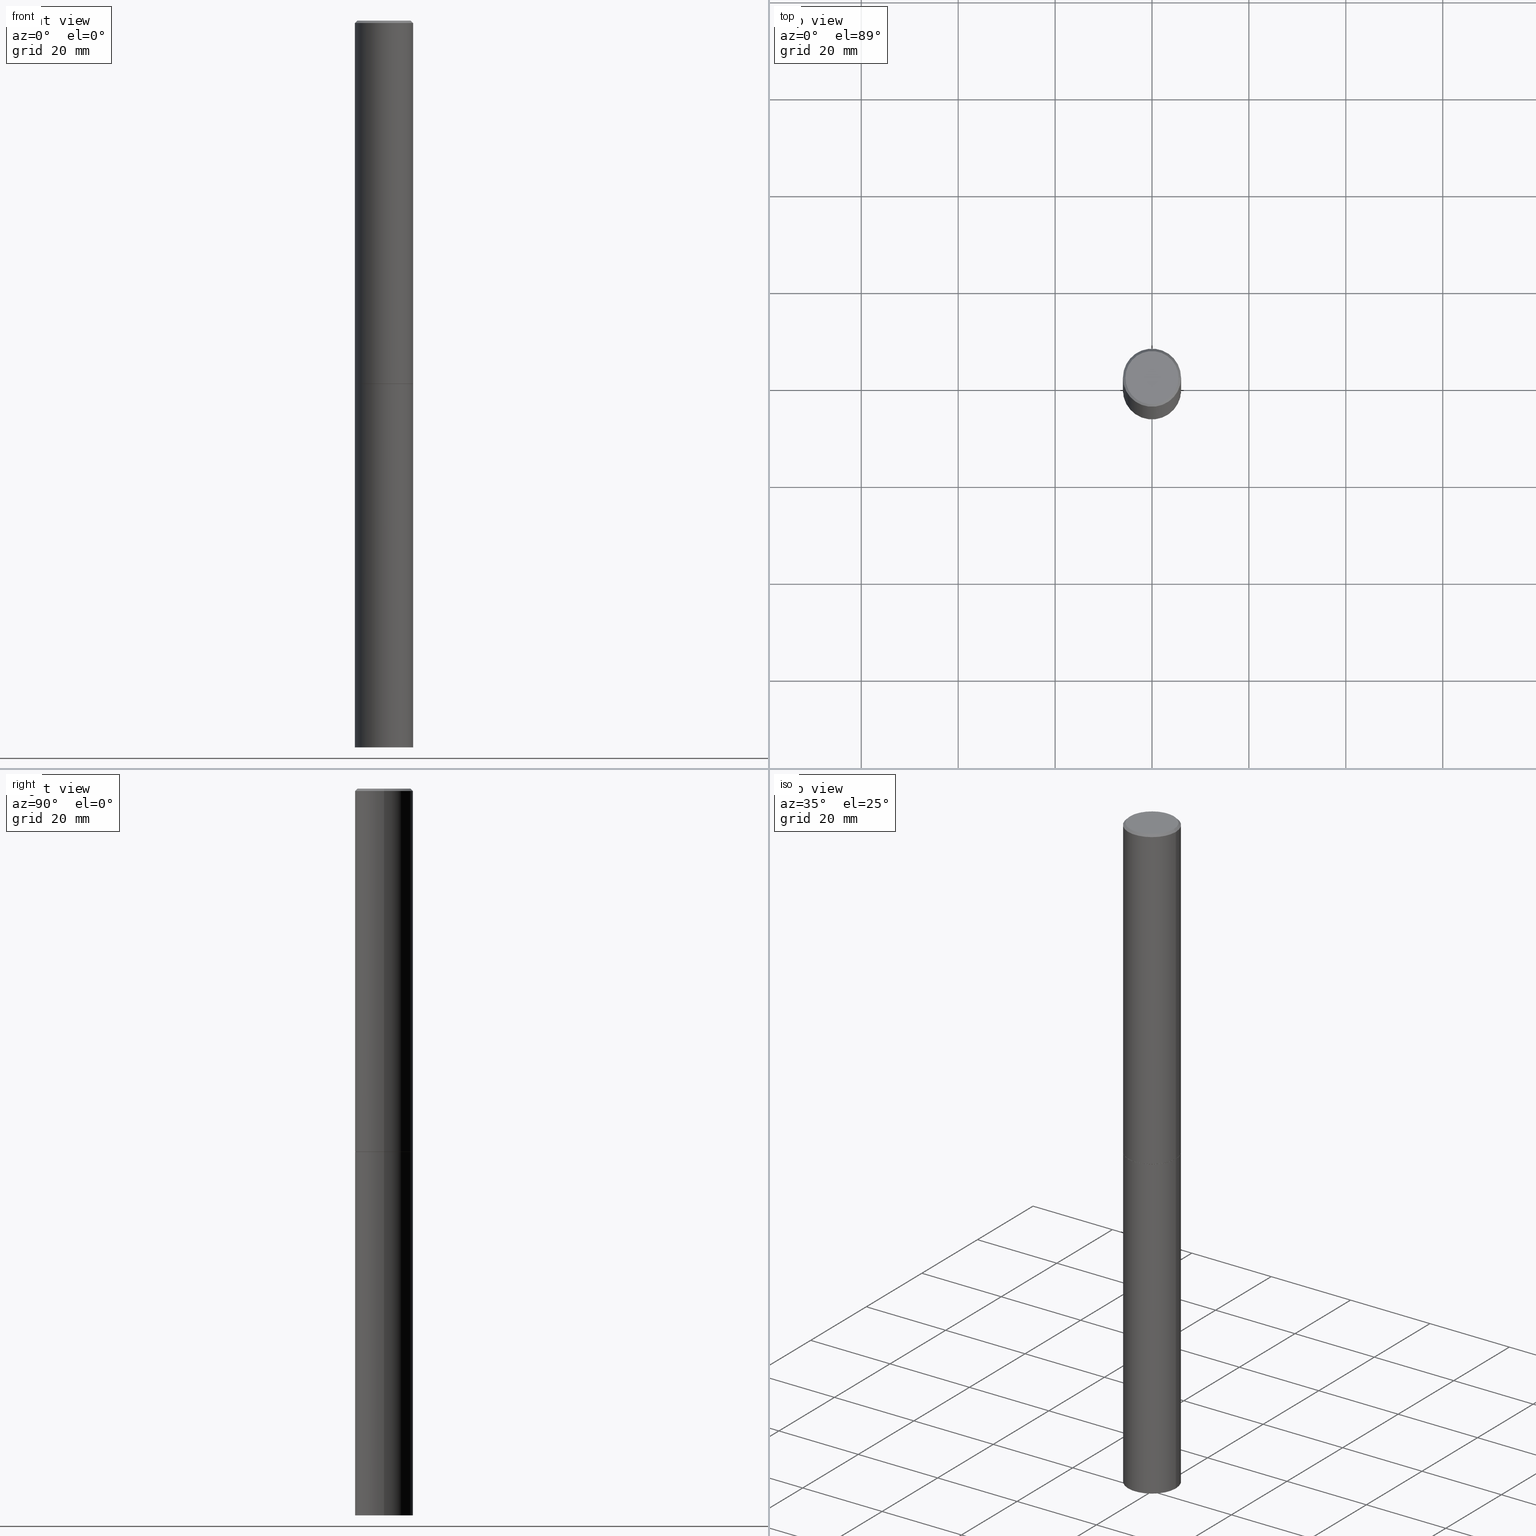
[diagram: canonical four-view strip — front | top / right | iso, engineering-drawing reading convention]
A machine part, canonical four-view strip (front | top / right | iso — engineering-drawing reading convention). The complete STEP part file that produces these views, byte-faithful:
ISO-10303-21;
HEADER;
FILE_DESCRIPTION (( 'STEP AP203' ),
    '1' );
FILE_NAME ('49473.STEP',
    '2024-02-28T22:57:47',
    ( '' ),
    ( '' ),
    'SwSTEP 2.0',
    'SolidWorks 2023',
    '' );
FILE_SCHEMA (( 'CONFIG_CONTROL_DESIGN' ));
ENDSEC;

DATA;
#1 = AXIS2_PLACEMENT_3D ( 'NONE', #149, #233, #207 ) ;
#2 = LOCAL_TIME ( 17, 57, 47.00000000000000000, #138 ) ;
#3 = CARTESIAN_POINT ( 'NONE',  ( 7.220735744022852519E-29, -1.030929694920215502E-14, -2.952700000000000102 ) ) ;
#4 = ORIENTED_EDGE ( 'NONE', *, *, #161, .F. ) ;
#5 = APPROVAL_STATUS ( 'not_yet_approved' ) ;
#6 = DIRECTION ( 'NONE',  ( -2.445468806185136597E-29, 3.491481338843145583E-15, 1.000000000000000000 ) ) ;
#7 = VERTEX_POINT ( 'NONE', #315 ) ;
#8 = CARTESIAN_POINT ( 'NONE',  ( 0.2361999999999997712, -1.690279253850497193E-15, -0.02000000000000007674 ) ) ;
#9 = ORIENTED_EDGE ( 'NONE', *, *, #339, .F. ) ;
#10 = DIRECTION ( 'NONE',  ( 0.7071067811866199593, -2.468850131083015945E-15, 0.7071067811864750752 ) ) ;
#11 = ORIENTED_EDGE ( 'NONE', *, *, #85, .F. ) ;
#12 = CARTESIAN_POINT ( 'NONE',  ( 0.000000000000000000, 0.000000000000000000, 0.000000000000000000 ) ) ;
#13 = ORIENTED_EDGE ( 'NONE', *, *, #68, .F. ) ;
#14 = DIRECTION ( 'NONE',  ( -2.445468806185136597E-29, 3.491481338843145583E-15, 1.000000000000000000 ) ) ;
#15 = CC_DESIGN_PERSON_AND_ORGANIZATION_ASSIGNMENT ( #252, #117, ( #288 ) ) ;
#16 = APPROVAL_PERSON_ORGANIZATION ( #112, #19, #340 ) ;
#17 = FACE_OUTER_BOUND ( 'NONE', #125, .T. ) ;
#18 = CARTESIAN_POINT ( 'NONE',  ( 7.220735744022852519E-29, -1.030929694920215502E-14, -2.952700000000000102 ) ) ;
#19 = APPROVAL ( #109, 'UNSPECIFIED' ) ;
#20 = AXIS2_PLACEMENT_3D ( 'NONE', #222, #98, #215 ) ;
#21 = VERTEX_POINT ( 'NONE', #363 ) ;
#22 = EDGE_CURVE ( 'NONE', #258, #319, #279, .T. ) ;
#23 = SHAPE_DEFINITION_REPRESENTATION ( #260, #330 ) ;
#24 = AXIS2_PLACEMENT_3D ( 'NONE', #178, #226, #83 ) ;
#25 = CC_DESIGN_APPROVAL ( #355, ( #288 ) ) ;
#26 = PERSON_AND_ORGANIZATION ( #114, #76 ) ;
#27 = ORIENTED_EDGE ( 'NONE', *, *, #339, .T. ) ;
#28 = DATE_TIME_ROLE ( 'creation_date' ) ;
#29 = ADVANCED_FACE ( 'NONE', ( #228 ), #57, .T. ) ;
#30 = LINE ( 'NONE', #341, #73 ) ;
#31 = APPLICATION_PROTOCOL_DEFINITION ( 'international standard', 'config_control_design', 1994, #164 ) ;
#32 = CARTESIAN_POINT ( 'NONE',  ( 4.890937612370292426E-31, -6.982962677686317493E-17, -0.02000000000000007674 ) ) ;
#33 = AXIS2_PLACEMENT_3D ( 'NONE', #247, #108, #84 ) ;
#34 = AXIS2_PLACEMENT_3D ( 'NONE', #237, #92, #211 ) ;
#35 = ORIENTED_EDGE ( 'NONE', *, *, #193, .T. ) ;
#36 = ORIENTED_EDGE ( 'NONE', *, *, #22, .F. ) ;
#37 = CC_DESIGN_PERSON_AND_ORGANIZATION_ASSIGNMENT ( #26, #194, ( #288 ) ) ;
#38 = CYLINDRICAL_SURFACE ( 'NONE', #232, 0.2361999999999999933 ) ;
#39 = LINE ( 'NONE', #122, #245 ) ;
#40 = EDGE_LOOP ( 'NONE', ( #264, #103, #351, #36 ) ) ;
#41 = DIRECTION ( 'NONE',  ( 1.000000000000000000, -6.982962677686266711E-15, 4.876176775795936353E-29 ) ) ;
#42 = ADVANCED_FACE ( 'NONE', ( #52 ), #145, .F. ) ;
#43 = FACE_OUTER_BOUND ( 'NONE', #67, .T. ) ;
#44 = CARTESIAN_POINT ( 'NONE',  ( -0.2361999999999999933, -1.378581805600481631E-14, -5.905499999999999972 ) ) ;
#45 = CARTESIAN_POINT ( 'NONE',  ( 4.890937612370292426E-31, -6.982962677686317493E-17, -0.02000000000000007674 ) ) ;
#46 = ADVANCED_FACE ( 'NONE', ( #199 ), #170, .F. ) ;
#47 = LINE ( 'NONE', #189, #54 ) ;
#48 = AXIS2_PLACEMENT_3D ( 'NONE', #311, #147, #313 ) ;
#49 = EDGE_CURVE ( 'NONE', #148, #123, #30, .T. ) ;
#50 = ORIENTED_EDGE ( 'NONE', *, *, #130, .F. ) ;
#51 = DATE_AND_TIME ( #306, #128 ) ;
#52 = FACE_OUTER_BOUND ( 'NONE', #283, .T. ) ;
#53 = CIRCLE ( 'NONE', #150, 0.2161999999999997257 ) ;
#54 = VECTOR ( 'NONE', #276, 39.37007874015748143 ) ;
#55 = DATE_AND_TIME ( #60, #225 ) ;
#56 = LINE ( 'NONE', #79, #309 ) ;
#57 = PLANE ( 'NONE',  #295 ) ;
#58 = CIRCLE ( 'NONE', #24, 0.2161999999999997257 ) ;
#59 = ORIENTED_EDGE ( 'NONE', *, *, #165, .T. ) ;
#60 = CALENDAR_DATE ( 2024, 28, 2 ) ;
#61 = CARTESIAN_POINT ( 'NONE',  ( 7.220735744022852519E-29, -1.030929694920215502E-14, -2.952700000000000102 ) ) ;
#62 = EDGE_CURVE ( 'NONE', #179, #88, #131, .T. ) ;
#63 = ORIENTED_EDGE ( 'NONE', *, *, #134, .T. ) ;
#64 = FACE_OUTER_BOUND ( 'NONE', #349, .T. ) ;
#65 = UNCERTAINTY_MEASURE_WITH_UNIT (LENGTH_MEASURE( 1.000000000000000082E-05 ), #357, 'distance_accuracy_value', 'NONE');
#66 = FACE_OUTER_BOUND ( 'NONE', #293, .T. ) ;
#67 = EDGE_LOOP ( 'NONE', ( #59, #210, #181, #9 ) ) ;
#68 = EDGE_CURVE ( 'NONE', #7, #163, #305, .T. ) ;
#69 = FACE_OUTER_BOUND ( 'NONE', #40, .T. ) ;
#70 = ORIENTED_EDGE ( 'NONE', *, *, #81, .T. ) ;
#71 = CARTESIAN_POINT ( 'NONE',  ( 7.218290275216666916E-29, -1.030580546786331359E-14, -2.951700000000000212 ) ) ;
#72 = FACE_OUTER_BOUND ( 'NONE', #191, .T. ) ;
#73 = VECTOR ( 'NONE', #139, 39.37007874015748143 ) ;
#74 = PRODUCT_DEFINITION ( 'UNKNOWN', '', #288, #135 ) ;
#75 = CLOSED_SHELL ( 'NONE', ( #186, #29, #46, #143 ) ) ;
#76 = ORGANIZATION ( 'UNSPECIFIED', 'UNSPECIFIED', '' ) ;
#77 = CALENDAR_DATE ( 2024, 28, 2 ) ;
#78 = PERSON_AND_ORGANIZATION ( #114, #76 ) ;
#79 = CARTESIAN_POINT ( 'NONE',  ( -0.2351999999999999924, -8.638100434694398841E-15, -2.952700000000000102 ) ) ;
#80 = AXIS2_PLACEMENT_3D ( 'NONE', #71, #185, #300 ) ;
#81 = EDGE_CURVE ( 'NONE', #163, #7, #359, .T. ) ;
#82 = COORDINATED_UNIVERSAL_TIME_OFFSET ( 5, 0, .BEHIND. ) ;
#83 = DIRECTION ( 'NONE',  ( 1.000000000000000000, -6.982962677686267499E-15, 4.876217060660161841E-29 ) ) ;
#84 = DIRECTION ( 'NONE',  ( -1.000000000000000000, 6.982962677686265922E-15, -4.876176775795935793E-29 ) ) ;
#85 = EDGE_CURVE ( 'NONE', #319, #123, #173, .T. ) ;
#86 = CARTESIAN_POINT ( 'NONE',  ( 7.220735744022852519E-29, -1.030929694920215502E-14, -2.952700000000000102 ) ) ;
#87 = DIRECTION ( 'NONE',  ( -1.000000000000000000, 6.982962677686266711E-15, 0.000000000000000000 ) ) ;
#88 = VERTEX_POINT ( 'NONE', #118 ) ;
#89 = DIRECTION ( 'NONE',  ( 1.000000000000000000, -6.982962677686266711E-15, 4.876176775795936353E-29 ) ) ;
#90 = ADVANCED_FACE ( 'NONE', ( #111 ), #141, .T. ) ;
#91 = EDGE_LOOP ( 'NONE', ( #266, #115, #144, #195 ) ) ;
#92 = DIRECTION ( 'NONE',  ( -2.445468806185136597E-29, 3.491481338843145583E-15, 1.000000000000000000 ) ) ;
#93 = AXIS2_PLACEMENT_3D ( 'NONE', #184, #97, #214 ) ;
#94 = ORIENTED_EDGE ( 'NONE', *, *, #281, .T. ) ;
#95 = VECTOR ( 'NONE', #217, 39.37007874015748143 ) ;
#96 = DIRECTION ( 'NONE',  ( 1.000000000000000000, -6.982962677686266711E-15, 4.876176775795935793E-29 ) ) ;
#97 = DIRECTION ( 'NONE',  ( -2.445468806185136597E-29, 3.491481338843145583E-15, 1.000000000000000000 ) ) ;
#98 = DIRECTION ( 'NONE',  ( 0.000000000000000000, 0.000000000000000000, 1.000000000000000000 ) ) ;
#99 = CC_DESIGN_DATE_AND_TIME_ASSIGNMENT ( #55, #28, ( #74 ) ) ;
#100 = APPROVAL_PERSON_ORGANIZATION ( #314, #355, #229 ) ;
#101 = LINE ( 'NONE', #331, #95 ) ;
#102 = EDGE_CURVE ( 'NONE', #163, #21, #56, .T. ) ;
#103 = ORIENTED_EDGE ( 'NONE', *, *, #49, .T. ) ;
#104 = DIRECTION ( 'NONE',  ( -1.000000000000000000, 6.982962677686266711E-15, 0.000000000000000000 ) ) ;
#105 = CIRCLE ( 'NONE', #93, 0.2361999999999999933 ) ;
#106 = AXIS2_PLACEMENT_3D ( 'NONE', #12, #321, #124 ) ;
#107 = SECURITY_CLASSIFICATION_LEVEL ( 'unclassified' ) ;
#108 = DIRECTION ( 'NONE',  ( 2.438088387897960049E-29, -3.491481338843145188E-15, -1.000000000000000000 ) ) ;
#109 = APPROVAL_STATUS ( 'not_yet_approved' ) ;
#110 = CIRCLE ( 'NONE', #1, 0.2361999999999999933 ) ;
#111 = FACE_OUTER_BOUND ( 'NONE', #91, .T. ) ;
#112 = PERSON_AND_ORGANIZATION ( #114, #76 ) ;
#113 = DIRECTION ( 'NONE',  ( 1.000000000000000000, -6.982962677686265922E-15, 4.876176775795935793E-29 ) ) ;
#114 = PERSON ( 'UNSPECIFIED', 'UNSPECIFIED', 'UNSPECIFIED', ('UNSPECIFIED'), ('UNSPECIFIED'), ('UNSPECIFIED') ) ;
#115 = ORIENTED_EDGE ( 'NONE', *, *, #102, .T. ) ;
#116 = EDGE_CURVE ( 'NONE', #21, #208, #268, .T. ) ;
#117 = PERSON_AND_ORGANIZATION_ROLE ( 'design_supplier' ) ;
#118 = CARTESIAN_POINT ( 'NONE',  ( -0.2361999999999999933, -1.378581805600481631E-14, -2.952700000000000102 ) ) ;
#119 = ORIENTED_EDGE ( 'NONE', *, *, #102, .F. ) ;
#120 = AXIS2_PLACEMENT_3D ( 'NONE', #86, #205, #250 ) ;
#121 = ORIENTED_EDGE ( 'NONE', *, *, #62, .T. ) ;
#122 = CARTESIAN_POINT ( 'NONE',  ( -0.2361999999999999933, 1.678301941865356591E-15, -1.161852468318208757E-29 ) ) ;
#123 = VERTEX_POINT ( 'NONE', #8 ) ;
#124 = DIRECTION ( 'NONE',  ( 1.000000000000000000, -6.982962677686266711E-15, 4.876176775795935793E-29 ) ) ;
#125 = EDGE_LOOP ( 'NONE', ( #151, #238, #212, #4 ) ) ;
#126 = DIRECTION ( 'NONE',  ( -2.445468806185136877E-29, 3.491481338843145188E-15, 1.000000000000000000 ) ) ;
#127 = AXIS2_PLACEMENT_3D ( 'NONE', #3, #336, #113 ) ;
#128 = LOCAL_TIME ( 17, 57, 47.00000000000000000, #82 ) ;
#129 = CARTESIAN_POINT ( 'NONE',  ( 0.000000000000000000, 0.000000000000000000, 0.000000000000000000 ) ) ;
#130 = EDGE_CURVE ( 'NONE', #258, #148, #58, .T. ) ;
#131 = CIRCLE ( 'NONE', #329, 0.2361999999999999933 ) ;
#132 = CIRCLE ( 'NONE', #34, 0.2361999999999999933 ) ;
#133 =( NAMED_UNIT ( * ) PLANE_ANGLE_UNIT ( ) SI_UNIT ( $, .RADIAN. ) );
#134 = EDGE_CURVE ( 'NONE', #148, #258, #53, .T. ) ;
#135 = DESIGN_CONTEXT ( 'detailed design', #164, 'design' ) ;
#136 = MANIFOLD_SOLID_BREP ( 'Body-Move/Copy2[2]', #287 ) ;
#137 = DIRECTION ( 'NONE',  ( -1.000000000000000000, 6.982962677686265922E-15, -4.876176775795935793E-29 ) ) ;
#138 = COORDINATED_UNIVERSAL_TIME_OFFSET ( 5, 0, .BEHIND. ) ;
#139 = DIRECTION ( 'NONE',  ( 0.7071067811865465735, -7.319954787623252890E-15, -0.7071067811865484609 ) ) ;
#140 = APPROVAL_DATE_TIME ( #172, #355 ) ;
#141 = CONICAL_SURFACE ( 'NONE', #120, 0.2351999999999999924, 0.7853981633975507526 ) ;
#142 = CC_DESIGN_APPROVAL ( #242, ( #74 ) ) ;
#143 = ADVANCED_FACE ( 'NONE', ( #72 ), #294, .T. ) ;
#144 = ORIENTED_EDGE ( 'NONE', *, *, #304, .F. ) ;
#145 = PLANE ( 'NONE',  #127 ) ;
#146 = EDGE_LOOP ( 'NONE', ( #154, #261, #236, #11 ) ) ;
#147 = DIRECTION ( 'NONE',  ( -2.445468806185136597E-29, 3.491481338843145583E-15, 1.000000000000000000 ) ) ;
#148 = VERTEX_POINT ( 'NONE', #347 ) ;
#149 = CARTESIAN_POINT ( 'NONE',  ( 1.444171603492632270E-28, -2.061894304653819197E-14, -5.905499999999999972 ) ) ;
#150 = AXIS2_PLACEMENT_3D ( 'NONE', #201, #356, #239 ) ;
#151 = ORIENTED_EDGE ( 'NONE', *, *, #304, .T. ) ;
#152 = ADVANCED_FACE ( 'NONE', ( #66 ), #274, .T. ) ;
#153 = DIRECTION ( 'NONE',  ( 2.445468806185136597E-29, -3.491481338843145583E-15, -1.000000000000000000 ) ) ;
#154 = ORIENTED_EDGE ( 'NONE', *, *, #348, .F. ) ;
#155 = CARTESIAN_POINT ( 'NONE',  ( 0.000000000000000000, 0.000000000000000000, 0.000000000000000000 ) ) ;
#156 = DIRECTION ( 'NONE',  ( -2.445468806185136597E-29, 3.491481338843145583E-15, 1.000000000000000000 ) ) ;
#157 = AXIS2_PLACEMENT_3D ( 'NONE', #32, #6, #344 ) ;
#158 = APPROVAL_PERSON_ORGANIZATION ( #200, #242, #197 ) ;
#159 = CARTESIAN_POINT ( 'NONE',  ( 4.890937612370292426E-31, -6.982962677686317493E-17, -0.02000000000000007674 ) ) ;
#160 = DIRECTION ( 'NONE',  ( 1.000000000000000000, -6.982962677686266711E-15, 0.000000000000000000 ) ) ;
#161 = EDGE_CURVE ( 'NONE', #208, #123, #259, .T. ) ;
#162 =( NAMED_UNIT ( * ) SI_UNIT ( $, .STERADIAN. ) SOLID_ANGLE_UNIT ( ) );
#163 = VERTEX_POINT ( 'NONE', #180 ) ;
#164 = APPLICATION_CONTEXT ( 'configuration controlled 3d designs of mechanical parts and assemblies' ) ;
#165 = EDGE_CURVE ( 'NONE', #298, #206, #110, .T. ) ;
#166 = DATE_TIME_ROLE ( 'classification_date' ) ;
#167 = DIRECTION ( 'NONE',  ( -2.445468806185136597E-29, 3.491481338843145583E-15, 1.000000000000000000 ) ) ;
#168 = PERSON_AND_ORGANIZATION_ROLE ( 'design_owner' ) ;
#169 = PRODUCT ( '49473', '49473', '', ( #338 ) ) ;
#170 = PLANE ( 'NONE',  #33 ) ;
#171 = EDGE_LOOP ( 'NONE', ( #121, #176 ) ) ;
#172 = DATE_AND_TIME ( #254, #2 ) ;
#173 = CIRCLE ( 'NONE', #157, 0.2361999999999997712 ) ;
#174 = DIRECTION ( 'NONE',  ( 2.438088387897960049E-29, -3.491481338843145188E-15, -1.000000000000000000 ) ) ;
#175 = LOCAL_TIME ( 17, 57, 47.00000000000000000, #227 ) ;
#176 = ORIENTED_EDGE ( 'NONE', *, *, #231, .T. ) ;
#177 = APPROVAL_DATE_TIME ( #316, #19 ) ;
#178 = CARTESIAN_POINT ( 'NONE',  ( -1.043851414335219820E-46, 1.490343170380447200E-32, 4.268512490100411279E-18 ) ) ;
#179 = VERTEX_POINT ( 'NONE', #188 ) ;
#180 = CARTESIAN_POINT ( 'NONE',  ( -0.2351999999999999924, -8.632801980346176439E-15, -2.952700000000000102 ) ) ;
#181 = ORIENTED_EDGE ( 'NONE', *, *, #62, .F. ) ;
#182 = LINE ( 'NONE', #345, #352 ) ;
#183 = ORIENTED_EDGE ( 'NONE', *, *, #85, .T. ) ;
#184 = CARTESIAN_POINT ( 'NONE',  ( 7.220735744022852519E-29, -1.030929694920215502E-14, -2.952700000000000102 ) ) ;
#185 = DIRECTION ( 'NONE',  ( -2.445468806185136597E-29, 3.491481338843145583E-15, 1.000000000000000000 ) ) ;
#186 = ADVANCED_FACE ( 'NONE', ( #43 ), #38, .T. ) ;
#187 = APPLICATION_CONTEXT ( 'configuration controlled 3d designs of mechanical parts and assemblies' ) ;
#188 = CARTESIAN_POINT ( 'NONE',  ( 0.2361999999999999933, -1.195867273367164996E-14, -2.952700000000000102 ) ) ;
#189 = CARTESIAN_POINT ( 'NONE',  ( 0.2361999999999999933, -1.649375784469496131E-15, 1.151752954443000088E-29 ) ) ;
#190 = AXIS2_PLACEMENT_3D ( 'NONE', #45, #332, #160 ) ;
#191 = EDGE_LOOP ( 'NONE', ( #286, #94, #27, #248 ) ) ;
#192 = LENGTH_MEASURE_WITH_UNIT ( LENGTH_MEASURE( 0.02539999999999999897 ), #272 );
#193 = EDGE_CURVE ( 'NONE', #7, #208, #182, .T. ) ;
#194 = PERSON_AND_ORGANIZATION_ROLE ( 'creator' ) ;
#195 = ORIENTED_EDGE ( 'NONE', *, *, #193, .F. ) ;
#196 = VECTOR ( 'NONE', #320, 39.37007874015748143 ) ;
#197 = APPROVAL_ROLE ( '' ) ;
#198 = AXIS2_PLACEMENT_3D ( 'NONE', #270, #156, #41 ) ;
#199 = FACE_OUTER_BOUND ( 'NONE', #171, .T. ) ;
#200 = PERSON_AND_ORGANIZATION ( #114, #76 ) ;
#201 = CARTESIAN_POINT ( 'NONE',  ( -1.043851414335219820E-46, 1.490343170380447200E-32, 4.268512490100411279E-18 ) ) ;
#202 = ORIENTED_EDGE ( 'NONE', *, *, #22, .T. ) ;
#203 = PERSON_AND_ORGANIZATION ( #114, #76 ) ;
#204 = CONICAL_SURFACE ( 'NONE', #277, 0.2361999999999997712, 0.7853981633974469467 ) ;
#205 = DIRECTION ( 'NONE',  ( -2.445468806185136597E-29, 3.491481338843145583E-15, 1.000000000000000000 ) ) ;
#206 = VERTEX_POINT ( 'NONE', #44 ) ;
#207 = DIRECTION ( 'NONE',  ( 1.000000000000000000, -6.982962677686273021E-15, 0.000000000000000000 ) ) ;
#208 = VERTEX_POINT ( 'NONE', #241 ) ;
#209 = DIRECTION ( 'NONE',  ( -2.445468806185136597E-29, 3.491481338843145583E-15, 1.000000000000000000 ) ) ;
#210 = ORIENTED_EDGE ( 'NONE', *, *, #218, .T. ) ;
#211 = DIRECTION ( 'NONE',  ( 1.000000000000000000, -6.982962677686273021E-15, 0.000000000000000000 ) ) ;
#212 = ORIENTED_EDGE ( 'NONE', *, *, #362, .F. ) ;
#213 = DIRECTION ( 'NONE',  ( -1.000000000000000000, 6.982962677686265922E-15, -4.876176775795935793E-29 ) ) ;
#214 = DIRECTION ( 'NONE',  ( 1.000000000000000000, -6.982962677686265133E-15, 0.000000000000000000 ) ) ;
#215 = DIRECTION ( 'NONE',  ( 1.000000000000000000, 0.000000000000000000, 0.000000000000000000 ) ) ;
#216 = AXIS2_PLACEMENT_3D ( 'NONE', #262, #235, #213 ) ;
#217 = DIRECTION ( 'NONE',  ( -2.445468806185136877E-29, 3.491481338843145188E-15, 1.000000000000000000 ) ) ;
#218 = EDGE_CURVE ( 'NONE', #206, #88, #39, .T. ) ;
#219 = AXIS2_PLACEMENT_3D ( 'NONE', #18, #209, #327 ) ;
#220 = CC_DESIGN_APPROVAL ( #19, ( #333 ) ) ;
#221 = CC_DESIGN_DATE_AND_TIME_ASSIGNMENT ( #284, #166, ( #333 ) ) ;
#222 = CARTESIAN_POINT ( 'NONE',  ( 0.000000000000000000, 0.000000000000000000, 0.000000000000000000 ) ) ;
#223 = DIRECTION ( 'NONE',  ( 1.000000000000000000, -6.982962677686265133E-15, 0.000000000000000000 ) ) ;
#224 = PERSON_AND_ORGANIZATION_ROLE ( 'creator' ) ;
#225 = LOCAL_TIME ( 17, 57, 47.00000000000000000, #312 ) ;
#226 = DIRECTION ( 'NONE',  ( -2.445468806185136597E-29, 3.491481338843145583E-15, 1.000000000000000000 ) ) ;
#227 = COORDINATED_UNIVERSAL_TIME_OFFSET ( 5, 0, .BEHIND. ) ;
#228 = FACE_OUTER_BOUND ( 'NONE', #324, .T. ) ;
#229 = APPROVAL_ROLE ( '' ) ;
#230 = CARTESIAN_POINT ( 'NONE',  ( -0.2361999999999997712, 1.579546157692631452E-15, -0.02000000000000007674 ) ) ;
#231 = EDGE_CURVE ( 'NONE', #88, #179, #105, .T. ) ;
#232 = AXIS2_PLACEMENT_3D ( 'NONE', #129, #301, #89 ) ;
#233 = DIRECTION ( 'NONE',  ( -2.445468806185136597E-29, 3.491481338843145583E-15, 1.000000000000000000 ) ) ;
#234 = CC_DESIGN_SECURITY_CLASSIFICATION ( #333, ( #288 ) ) ;
#235 = DIRECTION ( 'NONE',  ( 2.438088387897960049E-29, -3.491481338843145188E-15, -1.000000000000000000 ) ) ;
#236 = ORIENTED_EDGE ( 'NONE', *, *, #161, .T. ) ;
#237 = CARTESIAN_POINT ( 'NONE',  ( 1.444171603492632270E-28, -2.061894304653819197E-14, -5.905499999999999972 ) ) ;
#238 = ORIENTED_EDGE ( 'NONE', *, *, #348, .T. ) ;
#239 = DIRECTION ( 'NONE',  ( 1.000000000000000000, -6.982962677686267499E-15, 4.876217060660161841E-29 ) ) ;
#240 = CIRCLE ( 'NONE', #80, 0.2361999999999999933 ) ;
#241 = CARTESIAN_POINT ( 'NONE',  ( 0.2361999999999999933, -1.195518125233281011E-14, -2.951700000000000212 ) ) ;
#242 = APPROVAL ( #5, 'UNSPECIFIED' ) ;
#243 = LOCAL_TIME ( 17, 57, 47.00000000000000000, #343 ) ;
#244 = CC_DESIGN_PERSON_AND_ORGANIZATION_ASSIGNMENT ( #249, #334, ( #333 ) ) ;
#245 = VECTOR ( 'NONE', #126, 39.37007874015748143 ) ;
#246 = MANIFOLD_SOLID_BREP ( 'Body-Move/Copy2[1]', #75 ) ;
#247 = CARTESIAN_POINT ( 'NONE',  ( 1.649375784469568312E-15, 0.2361999999999896960, -2.952700000000000990 ) ) ;
#248 = ORIENTED_EDGE ( 'NONE', *, *, #231, .F. ) ;
#249 = PERSON_AND_ORGANIZATION ( #114, #76 ) ;
#250 = DIRECTION ( 'NONE',  ( 1.000000000000000000, -6.982962677686268288E-15, 0.000000000000000000 ) ) ;
#251 = AXIS2_PLACEMENT_3D ( 'NONE', #318, #366, #257 ) ;
#252 = PERSON_AND_ORGANIZATION ( #114, #76 ) ;
#253 = ORIENTED_EDGE ( 'NONE', *, *, #116, .F. ) ;
#254 = CALENDAR_DATE ( 2024, 28, 2 ) ;
#255 = DIRECTION ( 'NONE',  ( 1.000000000000000000, -6.982962677686268288E-15, 0.000000000000000000 ) ) ;
#256 = ADVANCED_FACE ( 'NONE', ( #69 ), #204, .T. ) ;
#257 = DIRECTION ( 'NONE',  ( 1.000000000000000000, -6.982962677686265133E-15, 0.000000000000000000 ) ) ;
#258 = VERTEX_POINT ( 'NONE', #350 ) ;
#259 = LINE ( 'NONE', #265, #196 ) ;
#260 = PRODUCT_DEFINITION_SHAPE ( 'NONE', 'NONE',  #74 ) ;
#261 = ORIENTED_EDGE ( 'NONE', *, *, #116, .T. ) ;
#262 = CARTESIAN_POINT ( 'NONE',  ( 1.509716530915768746E-15, 0.2161999999999997257, -7.527240092128370190E-16 ) ) ;
#263 = ADVANCED_FACE ( 'NONE', ( #64 ), #297, .F. ) ;
#264 = ORIENTED_EDGE ( 'NONE', *, *, #134, .F. ) ;
#265 = CARTESIAN_POINT ( 'NONE',  ( 0.2361999999999998545, -1.649375784469495145E-15, 1.151752954442999387E-29 ) ) ;
#266 = ORIENTED_EDGE ( 'NONE', *, *, #68, .T. ) ;
#267 = FACE_OUTER_BOUND ( 'NONE', #291, .T. ) ;
#268 = CIRCLE ( 'NONE', #251, 0.2361999999999999933 ) ;
#269 = CIRCLE ( 'NONE', #190, 0.2361999999999997712 ) ;
#270 = CARTESIAN_POINT ( 'NONE',  ( 0.000000000000000000, 0.000000000000000000, 0.000000000000000000 ) ) ;
#271 = ADVANCED_FACE ( 'NONE', ( #17 ), #354, .T. ) ;
#272 =( LENGTH_UNIT ( ) NAMED_UNIT ( * ) SI_UNIT ( $, .METRE. ) );
#273 = APPLICATION_PROTOCOL_DEFINITION ( 'international standard', 'config_control_design', 1994, #187 ) ;
#274 = CONICAL_SURFACE ( 'NONE', #219, 0.2351999999999999924, 0.7853981633975507526 ) ;
#275 = PRODUCT_RELATED_PRODUCT_CATEGORY ( 'detail', '', ( #169 ) ) ;
#276 = DIRECTION ( 'NONE',  ( -2.445468806185136877E-29, 3.491481338843145188E-15, 1.000000000000000000 ) ) ;
#277 = AXIS2_PLACEMENT_3D ( 'NONE', #159, #153, #87 ) ;
#278 = ORIENTED_EDGE ( 'NONE', *, *, #130, .T. ) ;
#279 = LINE ( 'NONE', #230, #322 ) ;
#280 = ORIENTED_EDGE ( 'NONE', *, *, #281, .F. ) ;
#281 = EDGE_CURVE ( 'NONE', #206, #298, #132, .T. ) ;
#282 = APPROVAL_STATUS ( 'not_yet_approved' ) ;
#283 = EDGE_LOOP ( 'NONE', ( #13, #346 ) ) ;
#284 = DATE_AND_TIME ( #365, #175 ) ;
#285 = DIRECTION ( 'NONE',  ( -0.7071067811865465735, 2.468850131082246805E-15, -0.7071067811865484609 ) ) ;
#286 = ORIENTED_EDGE ( 'NONE', *, *, #218, .F. ) ;
#287 = CLOSED_SHELL ( 'NONE', ( #90, #271, #256, #308, #290, #152, #42, #263 ) ) ;
#288 = PRODUCT_DEFINITION_FORMATION_WITH_SPECIFIED_SOURCE ( 'ANY', '', #169, .NOT_KNOWN. ) ;
#289 = DIRECTION ( 'NONE',  ( -2.445468806185136597E-29, 3.491481338843145583E-15, 1.000000000000000000 ) ) ;
#290 = ADVANCED_FACE ( 'NONE', ( #323 ), #299, .T. ) ;
#291 = EDGE_LOOP ( 'NONE', ( #364, #50, #202, #183 ) ) ;
#292 = CARTESIAN_POINT ( 'NONE',  ( 7.220735744022852519E-29, -1.030929694920215502E-14, -2.952700000000000102 ) ) ;
#293 = EDGE_LOOP ( 'NONE', ( #119, #70, #35, #253 ) ) ;
#294 = CYLINDRICAL_SURFACE ( 'NONE', #198, 0.2361999999999999933 ) ;
#295 = AXIS2_PLACEMENT_3D ( 'NONE', #307, #174, #137 ) ;
#296 =( GEOMETRIC_REPRESENTATION_CONTEXT ( 3 ) GLOBAL_UNCERTAINTY_ASSIGNED_CONTEXT ( ( #65 ) ) GLOBAL_UNIT_ASSIGNED_CONTEXT ( ( #357, #133, #162 ) ) REPRESENTATION_CONTEXT ( 'NONE', 'WORKASPACE' ) );
#297 = PLANE ( 'NONE',  #216 ) ;
#298 = VERTEX_POINT ( 'NONE', #326 ) ;
#299 = CYLINDRICAL_SURFACE ( 'NONE', #317, 0.2361999999999998545 ) ;
#300 = DIRECTION ( 'NONE',  ( 1.000000000000000000, -6.982962677686265133E-15, 0.000000000000000000 ) ) ;
#301 = DIRECTION ( 'NONE',  ( -2.445468806185136597E-29, 3.491481338843145583E-15, 1.000000000000000000 ) ) ;
#302 = CC_DESIGN_PERSON_AND_ORGANIZATION_ASSIGNMENT ( #78, #168, ( #169 ) ) ;
#303 = CARTESIAN_POINT ( 'NONE',  ( 4.890937612370292426E-31, -6.982962677686317493E-17, -0.02000000000000007674 ) ) ;
#304 = EDGE_CURVE ( 'NONE', #208, #21, #240, .T. ) ;
#305 = CIRCLE ( 'NONE', #337, 0.2351999999999999924 ) ;
#306 = CALENDAR_DATE ( 2024, 28, 2 ) ;
#307 = CARTESIAN_POINT ( 'NONE',  ( 1.649375784469640295E-15, 0.2361999999999793709, -5.905500000000000860 ) ) ;
#308 = ADVANCED_FACE ( 'NONE', ( #267 ), #361, .T. ) ;
#309 = VECTOR ( 'NONE', #335, 39.37007874015748143 ) ;
#310 = APPROVAL_DATE_TIME ( #51, #242 ) ;
#311 = CARTESIAN_POINT ( 'NONE',  ( 7.220735744022852519E-29, -1.030929694920215502E-14, -2.952700000000000102 ) ) ;
#312 = COORDINATED_UNIVERSAL_TIME_OFFSET ( 5, 0, .BEHIND. ) ;
#313 = DIRECTION ( 'NONE',  ( 1.000000000000000000, -6.982962677686268288E-15, 0.000000000000000000 ) ) ;
#314 = PERSON_AND_ORGANIZATION ( #114, #76 ) ;
#315 = CARTESIAN_POINT ( 'NONE',  ( 0.2351999999999999924, -1.195168977099396553E-14, -2.952700000000000102 ) ) ;
#316 = DATE_AND_TIME ( #77, #243 ) ;
#317 = AXIS2_PLACEMENT_3D ( 'NONE', #155, #14, #96 ) ;
#318 = CARTESIAN_POINT ( 'NONE',  ( 7.218290275216666916E-29, -1.030580546786331359E-14, -2.951700000000000212 ) ) ;
#319 = VERTEX_POINT ( 'NONE', #360 ) ;
#320 = DIRECTION ( 'NONE',  ( -2.445468806185136877E-29, 3.491481338843145188E-15, 1.000000000000000000 ) ) ;
#321 = DIRECTION ( 'NONE',  ( -2.445468806185136597E-29, 3.491481338843145583E-15, 1.000000000000000000 ) ) ;
#322 = VECTOR ( 'NONE', #285, 39.37007874015748143 ) ;
#323 = FACE_OUTER_BOUND ( 'NONE', #146, .T. ) ;
#324 = EDGE_LOOP ( 'NONE', ( #342, #280 ) ) ;
#325 = DIMENSIONAL_EXPONENTS ( 1.000000000000000000, 0.000000000000000000, 0.000000000000000000, 0.000000000000000000, 0.000000000000000000, 0.000000000000000000, 0.000000000000000000 ) ;
#326 = CARTESIAN_POINT ( 'NONE',  ( 0.2361999999999999933, -2.226831883100769165E-14, -5.905499999999999972 ) ) ;
#327 = DIRECTION ( 'NONE',  ( 1.000000000000000000, -6.982962677686268288E-15, 0.000000000000000000 ) ) ;
#328 = CC_DESIGN_PERSON_AND_ORGANIZATION_ASSIGNMENT ( #203, #224, ( #74 ) ) ;
#329 = AXIS2_PLACEMENT_3D ( 'NONE', #61, #167, #223 ) ;
#330 = ADVANCED_BREP_SHAPE_REPRESENTATION ( '49473', ( #246, #136, #20 ), #296 ) ;
#331 = CARTESIAN_POINT ( 'NONE',  ( -0.2361999999999998545, 1.678301941865355605E-15, -1.161852468318208056E-29 ) ) ;
#332 = DIRECTION ( 'NONE',  ( -2.445468806185136597E-29, 3.491481338843145583E-15, 1.000000000000000000 ) ) ;
#333 = SECURITY_CLASSIFICATION ( '', '', #107 ) ;
#334 = PERSON_AND_ORGANIZATION_ROLE ( 'classification_officer' ) ;
#335 = DIRECTION ( 'NONE',  ( -0.7071067811866199593, 7.493145998870616062E-15, 0.7071067811864750752 ) ) ;
#336 = DIRECTION ( 'NONE',  ( -2.438088387897960049E-29, 3.491481338843145188E-15, 1.000000000000000000 ) ) ;
#337 = AXIS2_PLACEMENT_3D ( 'NONE', #292, #289, #255 ) ;
#338 = MECHANICAL_CONTEXT ( 'NONE', #187, 'mechanical' ) ;
#339 = EDGE_CURVE ( 'NONE', #298, #179, #47, .T. ) ;
#340 = APPROVAL_ROLE ( '' ) ;
#341 = CARTESIAN_POINT ( 'NONE',  ( 0.2361999999999997712, -1.690279253850497193E-15, -0.02000000000000007674 ) ) ;
#342 = ORIENTED_EDGE ( 'NONE', *, *, #165, .F. ) ;
#343 = COORDINATED_UNIVERSAL_TIME_OFFSET ( 5, 0, .BEHIND. ) ;
#344 = DIRECTION ( 'NONE',  ( 1.000000000000000000, -6.982962677686266711E-15, 0.000000000000000000 ) ) ;
#345 = CARTESIAN_POINT ( 'NONE',  ( 0.2351999999999999924, -1.195168977099396553E-14, -2.952700000000000102 ) ) ;
#346 = ORIENTED_EDGE ( 'NONE', *, *, #81, .F. ) ;
#347 = CARTESIAN_POINT ( 'NONE',  ( 0.2161999999999997257, -1.586759460484350213E-15, 4.268512490111238857E-18 ) ) ;
#348 = EDGE_CURVE ( 'NONE', #21, #319, #101, .T. ) ;
#349 = EDGE_LOOP ( 'NONE', ( #278, #63 ) ) ;
#350 = CARTESIAN_POINT ( 'NONE',  ( -0.2161999999999997257, 1.544631344304200197E-15, 4.268512490089730842E-18 ) ) ;
#351 = ORIENTED_EDGE ( 'NONE', *, *, #362, .T. ) ;
#352 = VECTOR ( 'NONE', #10, 39.37007874015748143 ) ;
#353 = AXIS2_PLACEMENT_3D ( 'NONE', #303, #358, #104 ) ;
#354 = CYLINDRICAL_SURFACE ( 'NONE', #106, 0.2361999999999998545 ) ;
#355 = APPROVAL ( #282, 'UNSPECIFIED' ) ;
#356 = DIRECTION ( 'NONE',  ( -2.445468806185136597E-29, 3.491481338843145583E-15, 1.000000000000000000 ) ) ;
#357 =( CONVERSION_BASED_UNIT ( 'INCH', #192 ) LENGTH_UNIT ( ) NAMED_UNIT ( #325 ) );
#358 = DIRECTION ( 'NONE',  ( 2.445468806185136597E-29, -3.491481338843145583E-15, -1.000000000000000000 ) ) ;
#359 = CIRCLE ( 'NONE', #48, 0.2351999999999999924 ) ;
#360 = CARTESIAN_POINT ( 'NONE',  ( -0.2361999999999997712, 1.579546157692631452E-15, -0.02000000000000007674 ) ) ;
#361 = CONICAL_SURFACE ( 'NONE', #353, 0.2361999999999997712, 0.7853981633974469467 ) ;
#362 = EDGE_CURVE ( 'NONE', #123, #319, #269, .T. ) ;
#363 = CARTESIAN_POINT ( 'NONE',  ( -0.2362000000000000210, -3.509515605454727710E-15, -2.951700000000000212 ) ) ;
#364 = ORIENTED_EDGE ( 'NONE', *, *, #49, .F. ) ;
#365 = CALENDAR_DATE ( 2024, 28, 2 ) ;
#366 = DIRECTION ( 'NONE',  ( -2.445468806185136597E-29, 3.491481338843145583E-15, 1.000000000000000000 ) ) ;
ENDSEC;
END-ISO-10303-21;
